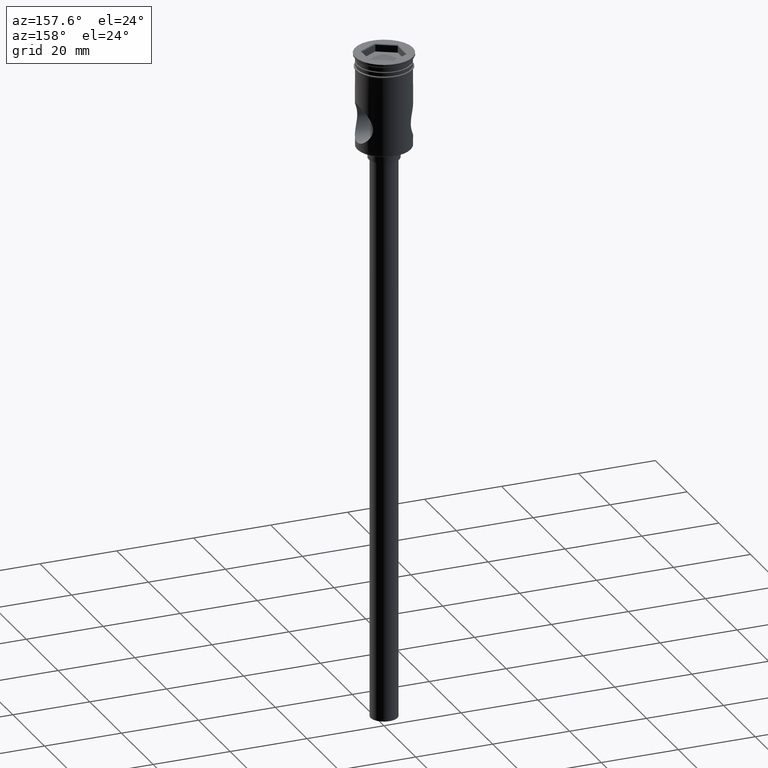
[diagram: clean part render]
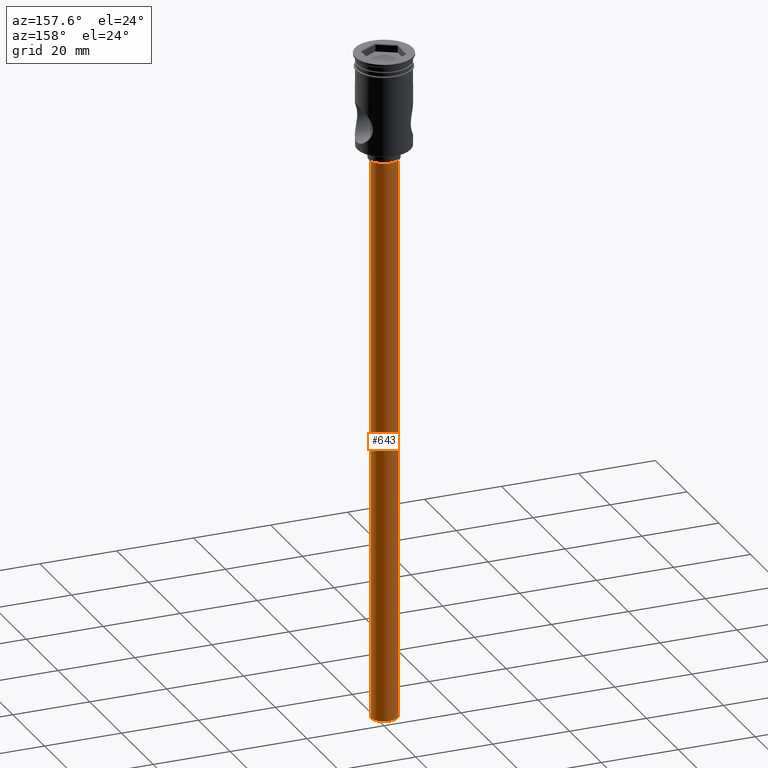
[diagram: same view with one face highlighted and labeled with its STEP entity id]
A machine part, auxiliary view. The second image highlights one B-rep face of the part: STEP entity #643.
In plain terms, the highlighted cylindrical surface (edge-blend (fillet) strip) has radius 3.5 mm, axis along (-0, -0, 1).
Its self-contained STEP definition (entity closure, byte-faithful):
#7 = CARTESIAN_POINT ( 'NONE',  ( -3.500000000000000444, 4.286263797015737088E-16, -174.5000000000000000 ) ) ;
#49 = CARTESIAN_POINT ( 'NONE',  ( 3.500000000000000444, 0.000000000000000000, -27.50000000000000000 ) ) ;
#74 = EDGE_LOOP ( 'NONE', ( #93, #269, #90, #1147 ) ) ;
#90 = ORIENTED_EDGE ( 'NONE', *, *, #204, .T. ) ;
#93 = ORIENTED_EDGE ( 'NONE', *, *, #994, .F. ) ;
#167 = DIRECTION ( 'NONE',  ( -1.000000000000000000, 0.000000000000000000, 0.000000000000000000 ) ) ;
#168 = CARTESIAN_POINT ( 'NONE',  ( 0.000000000000000000, 0.000000000000000000, -174.5000000000000000 ) ) ;
#195 = EDGE_CURVE ( 'NONE', #375, #1468, #516, .T. ) ;
#204 = EDGE_CURVE ( 'NONE', #582, #1468, #371, .T. ) ;
#233 = CIRCLE ( 'NONE', #862, 3.500000000000000444 ) ;
#269 = ORIENTED_EDGE ( 'NONE', *, *, #1206, .T. ) ;
#288 = CARTESIAN_POINT ( 'NONE',  ( 3.500000000000000444, 0.000000000000000000, -174.5000000000000000 ) ) ;
#297 = CYLINDRICAL_SURFACE ( 'NONE', #347, 3.500000000000000444 ) ;
#307 = CARTESIAN_POINT ( 'NONE',  ( -3.500000000000000444, 4.286263797015737088E-16, -27.50000000000000000 ) ) ;
#347 = AXIS2_PLACEMENT_3D ( 'NONE', #168, #636, #534 ) ;
#371 = CIRCLE ( 'NONE', #1243, 3.500000000000000444 ) ;
#375 = VERTEX_POINT ( 'NONE', #1330 ) ;
#448 = CARTESIAN_POINT ( 'NONE',  ( -3.500000000000000444, 4.286263797015737088E-16, -174.5000000000000000 ) ) ;
#516 = LINE ( 'NONE', #288, #1221 ) ;
#531 = DIRECTION ( 'NONE',  ( 0.000000000000000000, 0.000000000000000000, -1.000000000000000000 ) ) ;
#534 = DIRECTION ( 'NONE',  ( 1.000000000000000000, 0.000000000000000000, 0.000000000000000000 ) ) ;
#582 = VERTEX_POINT ( 'NONE', #307 ) ;
#636 = DIRECTION ( 'NONE',  ( -0.000000000000000000, -0.000000000000000000, 1.000000000000000000 ) ) ;
#643 = ADVANCED_FACE ( 'NONE', ( #984 ), #297, .T. ) ;
#842 = CARTESIAN_POINT ( 'NONE',  ( 0.000000000000000000, 0.000000000000000000, -27.50000000000000000 ) ) ;
#862 = AXIS2_PLACEMENT_3D ( 'NONE', #1457, #531, #966 ) ;
#952 = DIRECTION ( 'NONE',  ( 0.000000000000000000, 0.000000000000000000, -1.000000000000000000 ) ) ;
#966 = DIRECTION ( 'NONE',  ( -1.000000000000000000, 0.000000000000000000, 0.000000000000000000 ) ) ;
#984 = FACE_OUTER_BOUND ( 'NONE', #74, .T. ) ;
#994 = EDGE_CURVE ( 'NONE', #1115, #375, #233, .T. ) ;
#1115 = VERTEX_POINT ( 'NONE', #448 ) ;
#1147 = ORIENTED_EDGE ( 'NONE', *, *, #195, .F. ) ;
#1165 = DIRECTION ( 'NONE',  ( -0.000000000000000000, -0.000000000000000000, 1.000000000000000000 ) ) ;
#1206 = EDGE_CURVE ( 'NONE', #1115, #582, #1407, .T. ) ;
#1211 = DIRECTION ( 'NONE',  ( -0.000000000000000000, -0.000000000000000000, 1.000000000000000000 ) ) ;
#1221 = VECTOR ( 'NONE', #1211, 1000.000000000000000 ) ;
#1243 = AXIS2_PLACEMENT_3D ( 'NONE', #842, #952, #167 ) ;
#1247 = VECTOR ( 'NONE', #1165, 1000.000000000000000 ) ;
#1330 = CARTESIAN_POINT ( 'NONE',  ( 3.500000000000000444, 0.000000000000000000, -174.5000000000000000 ) ) ;
#1407 = LINE ( 'NONE', #7, #1247 ) ;
#1457 = CARTESIAN_POINT ( 'NONE',  ( 0.000000000000000000, 0.000000000000000000, -174.5000000000000000 ) ) ;
#1468 = VERTEX_POINT ( 'NONE', #49 ) ;